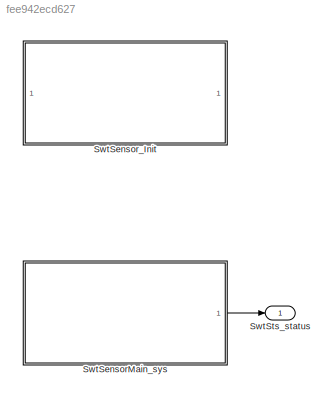
MODEL slx_fee942ecd627
KIND model
CONFIG AbsTol = auto
CONFIG EnableMultiTasking = off
CONFIG FixedStep = 0.01
CONFIG MaxStep = auto
CONFIG MinStep = auto
CONFIG RelTol = 1e-3
CONFIG SampleTimeConstraint = Unconstrained
CONFIG Solver = FixedStepDiscrete
CONFIG SolverName = FixedStepDiscrete
CONFIG StartTime = 0.0
CONFIG StopTime = 10.0
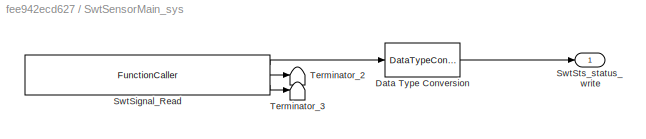
BLOCK [SubSystem] SwtSensorMain_sys
  Ports = [0, 1]
  RequestExecContextInheritance = off
  SystemSampleTime = 0.01
  TreatAsAtomicUnit = on
BLOCK [DataTypeConversion] SwtSensorMain_sys/Data Type Conversion
  RndMeth = Floor
  SaturateOnIntegerOverflow = off
BLOCK [FunctionCaller] SwtSensorMain_sys/SwtSignal_Read
  FunctionPrototype = [Level,Quality,ERR] = SwtSignal_Read()
  OutputArgumentSpecifications = DigitalLevel(0), SignalQuality(0), P_Std_ReturnType
  Ports = [0, 3]
BLOCK [Outport] SwtSensorMain_sys/SwtSts_status_write
  IconDisplay = Port number
BLOCK [Terminator] SwtSensorMain_sys/Terminator_2
BLOCK [Terminator] SwtSensorMain_sys/Terminator_3
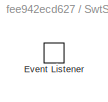
BLOCK [SubSystem] SwtSensor_Init
  Ports = []
  RequestExecContextInheritance = off
BLOCK [EventListener] SwtSensor_Init/Event Listener
  EventName = reset
BLOCK [Outport] SwtSts_status
  IconDisplay = Port number
  OutDataTypeStr = SwitchStatus
  PortDimensions = 1
  SamplingMode = Sample based
  SignalType = real
LINE SwtSensorMain_sys/Data Type Conversion:1 -> SwtSensorMain_sys/SwtSts_status_write:1
LINE SwtSensorMain_sys/SwtSignal_Read:1 -> SwtSensorMain_sys/Data Type Conversion:1
LINE SwtSensorMain_sys/SwtSignal_Read:2 -> SwtSensorMain_sys/Terminator_2:1
LINE SwtSensorMain_sys/SwtSignal_Read:3 -> SwtSensorMain_sys/Terminator_3:1
LINE SwtSensorMain_sys:1 -> SwtSts_status:1
